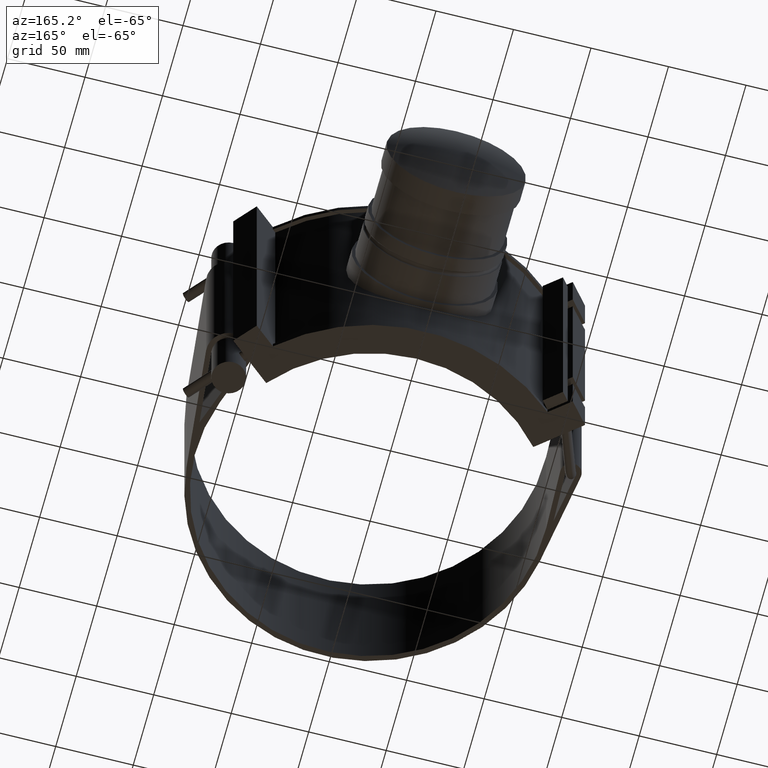
[diagram: clean part render]
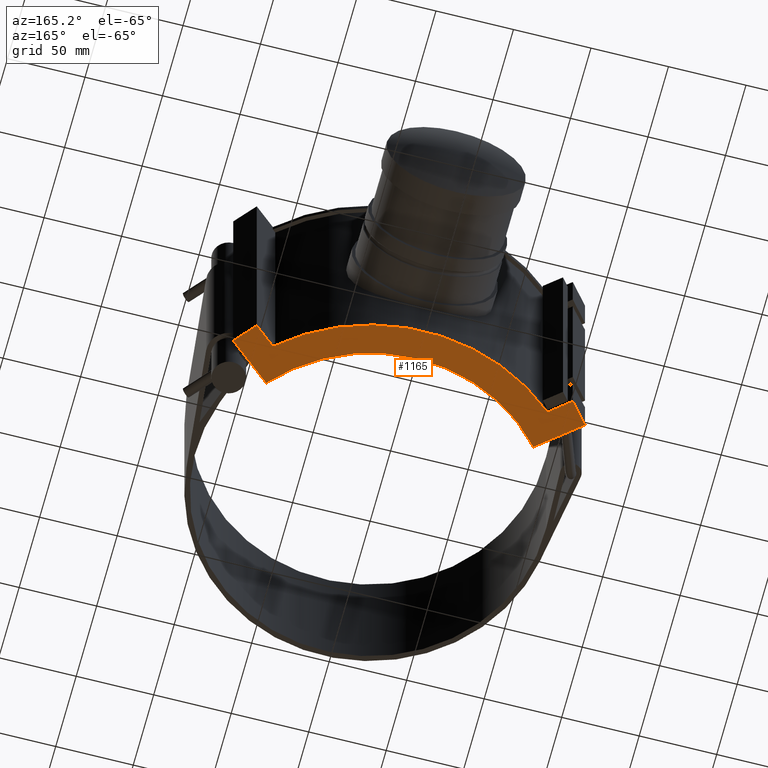
[diagram: same view with one face highlighted and labeled with its STEP entity id]
A machine part, auxiliary view. The second image highlights one B-rep face of the part: STEP entity #1165.
In plain terms, the highlighted planar face has unit normal (0, 0, 1).
Its self-contained STEP definition (entity closure, byte-faithful):
#51=LINE('',#1915,#154);
#63=LINE('',#1942,#166);
#67=LINE('',#1950,#170);
#72=LINE('',#1969,#175);
#73=LINE('',#1973,#176);
#74=LINE('',#1974,#177);
#154=VECTOR('',#1420,17.4346127309904);
#166=VECTOR('',#1442,18.);
#170=VECTOR('',#1448,17.4346127309903);
#175=VECTOR('',#1473,35.6637273392137);
#176=VECTOR('',#1476,35.6637273392137);
#177=VECTOR('',#1477,18.);
#246=PLANE('',#1257);
#331=FACE_OUTER_BOUND('',#409,.T.);
#409=EDGE_LOOP('',(#903,#904,#905,#906,#907,#908,#909,#910));
#497=CIRCLE('',#1256,131.9625);
#498=CIRCLE('',#1258,112.5);
#564=VERTEX_POINT('',#1912);
#565=VERTEX_POINT('',#1914);
#574=VERTEX_POINT('',#1939);
#575=VERTEX_POINT('',#1941);
#578=VERTEX_POINT('',#1949);
#582=VERTEX_POINT('',#1968);
#583=VERTEX_POINT('',#1970);
#584=VERTEX_POINT('',#1972);
#682=EDGE_CURVE('',#565,#564,#51,.T.);
#696=EDGE_CURVE('',#574,#575,#63,.T.);
#700=EDGE_CURVE('',#575,#578,#67,.T.);
#709=EDGE_CURVE('',#564,#578,#497,.T.);
#710=EDGE_CURVE('',#574,#582,#72,.T.);
#711=EDGE_CURVE('',#582,#583,#498,.T.);
#712=EDGE_CURVE('',#583,#584,#73,.T.);
#713=EDGE_CURVE('',#584,#565,#74,.T.);
#903=ORIENTED_EDGE('',*,*,#710,.T.);
#904=ORIENTED_EDGE('',*,*,#711,.T.);
#905=ORIENTED_EDGE('',*,*,#712,.T.);
#906=ORIENTED_EDGE('',*,*,#713,.T.);
#907=ORIENTED_EDGE('',*,*,#682,.T.);
#908=ORIENTED_EDGE('',*,*,#709,.T.);
#909=ORIENTED_EDGE('',*,*,#700,.F.);
#910=ORIENTED_EDGE('',*,*,#696,.F.);
#1165=ADVANCED_FACE('',(#331),#246,.F.);
#1256=AXIS2_PLACEMENT_3D('',#1966,#1469,#1470);
#1257=AXIS2_PLACEMENT_3D('',#1967,#1471,#1472);
#1258=AXIS2_PLACEMENT_3D('',#1971,#1474,#1475);
#1420=DIRECTION('',(0.766044443118978,-0.64278760968654,0.));
#1442=DIRECTION('',(-0.64278760968654,0.766044443118978,0.));
#1448=DIRECTION('',(-0.766044443118978,-0.64278760968654,0.));
#1469=DIRECTION('center_axis',(0.,0.,-1.));
#1470=DIRECTION('ref_axis',(-1.,-7.18501312118754E-17,0.));
#1471=DIRECTION('center_axis',(0.,0.,1.));
#1472=DIRECTION('ref_axis',(1.,0.,0.));
#1473=DIRECTION('',(-0.766044443118978,-0.64278760968654,0.));
#1474=DIRECTION('center_axis',(0.,0.,1.));
#1475=DIRECTION('ref_axis',(-1.,0.,0.));
#1476=DIRECTION('',(-0.766044443118978,0.642787609686539,0.));
#1477=DIRECTION('',(0.64278760968654,0.766044443118978,0.));
#1912=CARTESIAN_POINT('',(-88.5741348251358,97.8198550715992,-88.));
#1914=CARTESIAN_POINT('',(-101.929823025642,109.026608114763,-88.));
#1915=CARTESIAN_POINT('',(-101.929823025642,109.026608114763,-88.));
#1939=CARTESIAN_POINT('',(113.5,95.2378081386214,-88.));
#1941=CARTESIAN_POINT('',(101.929823025642,109.026608114763,-88.));
#1942=CARTESIAN_POINT('',(113.5,95.2378081386214,-88.));
#1949=CARTESIAN_POINT('',(88.5741348251358,97.8198550715992,-88.));
#1950=CARTESIAN_POINT('',(101.929823025642,109.026608114763,-88.));
#1966=CARTESIAN_POINT('Origin',(0.,0.,-88.));
#1967=CARTESIAN_POINT('Origin',(-4.98173417321692E-15,-1.83070592144309E-15,
-88.));
#1968=CARTESIAN_POINT('',(86.179999850885,72.3136060897357,-88.));
#1969=CARTESIAN_POINT('',(-1.00905226612226E-14,-1.13251185496205E-14,-88.));
#1970=CARTESIAN_POINT('',(-86.179999850885,72.3136060897357,-88.));
#1971=CARTESIAN_POINT('Origin',(0.,0.,-88.));
#1972=CARTESIAN_POINT('',(-113.5,95.2378081386214,-88.));
#1973=CARTESIAN_POINT('',(-86.179999850885,72.3136060897357,-88.));
#1974=CARTESIAN_POINT('',(-113.5,95.2378081386214,-88.));